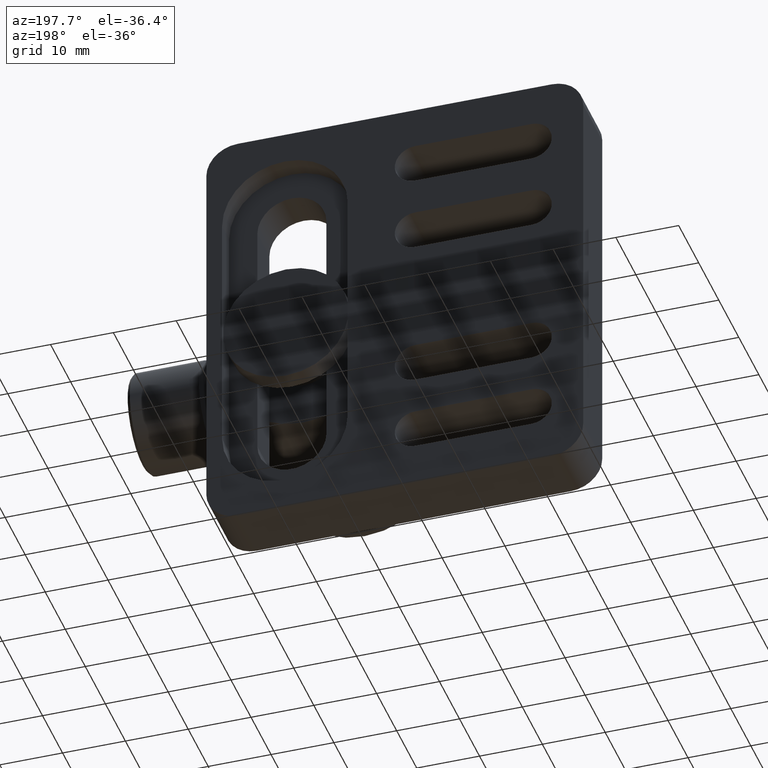
[diagram: clean part render]
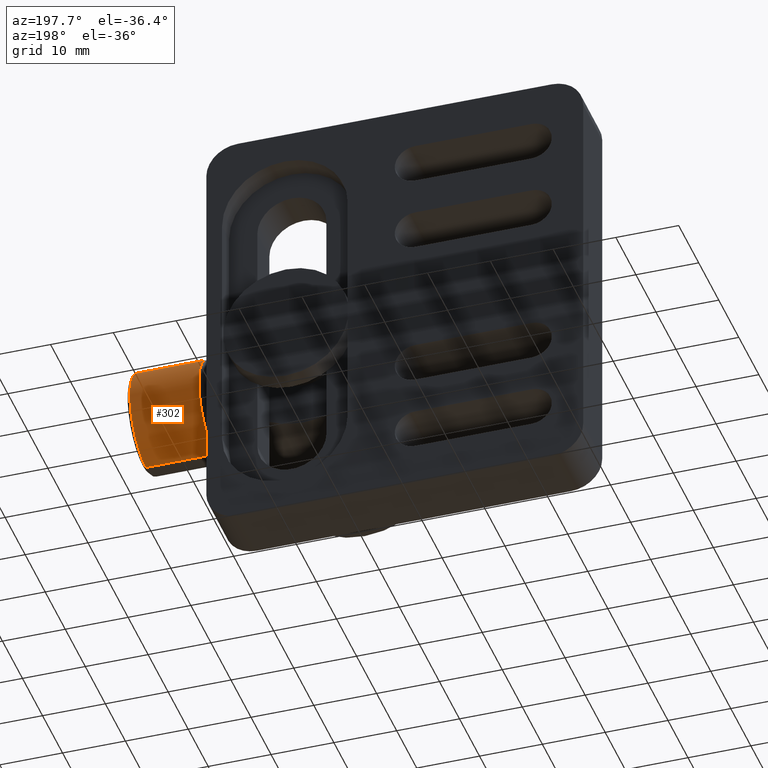
[diagram: same view with one face highlighted and labeled with its STEP entity id]
A machine part, auxiliary view. The second image highlights one B-rep face of the part: STEP entity #302.
In plain terms, the highlighted cylindrical surface (partial cylindrical patch) has radius 8 mm, axis along (1, 0, -0).
Its self-contained STEP definition (entity closure, byte-faithful):
#132 = EDGE_LOOP ( 'NONE', ( #1237, #3688, #450, #2475 ) ) ;
#302 = ADVANCED_FACE ( 'NONE', ( #3908 ), #1144, .T. ) ;
#355 = DIRECTION ( 'NONE',  ( 0.0000000000000000000, 0.0000000000000000000, -1.000000000000000000 ) ) ;
#439 = VERTEX_POINT ( 'NONE', #815 ) ;
#450 = ORIENTED_EDGE ( 'NONE', *, *, #4090, .T. ) ;
#772 = LINE ( 'NONE', #1071, #1782 ) ;
#796 = CARTESIAN_POINT ( 'NONE',  ( 36.60735694822878400, -21.36148955495005500, 2.264237050944496300E-014 ) ) ;
#815 = CARTESIAN_POINT ( 'NONE',  ( 36.60735694822878400, -21.36148955495005500, -7.999999999999977800 ) ) ;
#1015 = VERTEX_POINT ( 'NONE', #1985 ) ;
#1050 = CARTESIAN_POINT ( 'NONE',  ( 47.60735694822877700, -21.36148955495005100, 2.249594212587182400E-014 ) ) ;
#1071 = CARTESIAN_POINT ( 'NONE',  ( 34.10735694822878400, -21.36148955495003000, -7.999999999999977800 ) ) ;
#1135 = EDGE_CURVE ( 'NONE', #439, #1199, #772, .T. ) ;
#1144 = CYLINDRICAL_SURFACE ( 'NONE', #2242, 8.000000000000000000 ) ;
#1199 = VERTEX_POINT ( 'NONE', #3082 ) ;
#1237 = ORIENTED_EDGE ( 'NONE', *, *, #3152, .T. ) ;
#1405 = VERTEX_POINT ( 'NONE', #3898 ) ;
#1588 = AXIS2_PLACEMENT_3D ( 'NONE', #796, #3140, #2055 ) ;
#1596 = LINE ( 'NONE', #1714, #3255 ) ;
#1675 = DIRECTION ( 'NONE',  ( 1.000000000000000000, 3.382788729622947300E-016, -1.331167123392389800E-017 ) ) ;
#1714 = CARTESIAN_POINT ( 'NONE',  ( 34.10735694822878400, -21.36148955495003000, 8.000000000000023100 ) ) ;
#1732 = DIRECTION ( 'NONE',  ( 0.0000000000000000000, 0.0000000000000000000, -1.000000000000000000 ) ) ;
#1782 = VECTOR ( 'NONE', #1675, 1000.000000000000000 ) ;
#1985 = CARTESIAN_POINT ( 'NONE',  ( 47.60735694822877700, -21.36148955495002600, 8.000000000000023100 ) ) ;
#2055 = DIRECTION ( 'NONE',  ( 0.0000000000000000000, 0.0000000000000000000, 1.000000000000000000 ) ) ;
#2242 = AXIS2_PLACEMENT_3D ( 'NONE', #3387, #2770, #355 ) ;
#2275 = CIRCLE ( 'NONE', #3622, 8.000000000000000000 ) ;
#2475 = ORIENTED_EDGE ( 'NONE', *, *, #1135, .F. ) ;
#2770 = DIRECTION ( 'NONE',  ( 1.000000000000000000, 3.382788729622947300E-016, -1.331167123392389800E-017 ) ) ;
#3040 = CIRCLE ( 'NONE', #1588, 8.000000000000000000 ) ;
#3082 = CARTESIAN_POINT ( 'NONE',  ( 47.60735694822877700, -21.36148955495005100, -7.999999999999977800 ) ) ;
#3140 = DIRECTION ( 'NONE',  ( 1.000000000000000000, 3.382788729622947300E-016, -1.331167123392389800E-017 ) ) ;
#3152 = EDGE_CURVE ( 'NONE', #439, #1405, #3040, .T. ) ;
#3255 = VECTOR ( 'NONE', #4095, 1000.000000000000000 ) ;
#3387 = CARTESIAN_POINT ( 'NONE',  ( 34.10735694822878400, -21.36148955495003000, 2.267564968752979600E-014 ) ) ;
#3425 = EDGE_CURVE ( 'NONE', #1405, #1015, #1596, .T. ) ;
#3622 = AXIS2_PLACEMENT_3D ( 'NONE', #1050, #4064, #1732 ) ;
#3688 = ORIENTED_EDGE ( 'NONE', *, *, #3425, .T. ) ;
#3898 = CARTESIAN_POINT ( 'NONE',  ( 36.60735694822878400, -21.36148955495005500, 8.000000000000023100 ) ) ;
#3908 = FACE_OUTER_BOUND ( 'NONE', #132, .T. ) ;
#4064 = DIRECTION ( 'NONE',  ( -1.000000000000000000, -3.382788729622947300E-016, 1.331167123392389800E-017 ) ) ;
#4090 = EDGE_CURVE ( 'NONE', #1015, #1199, #2275, .T. ) ;
#4095 = DIRECTION ( 'NONE',  ( 1.000000000000000000, 3.382788729622947300E-016, -1.331167123392389800E-017 ) ) ;